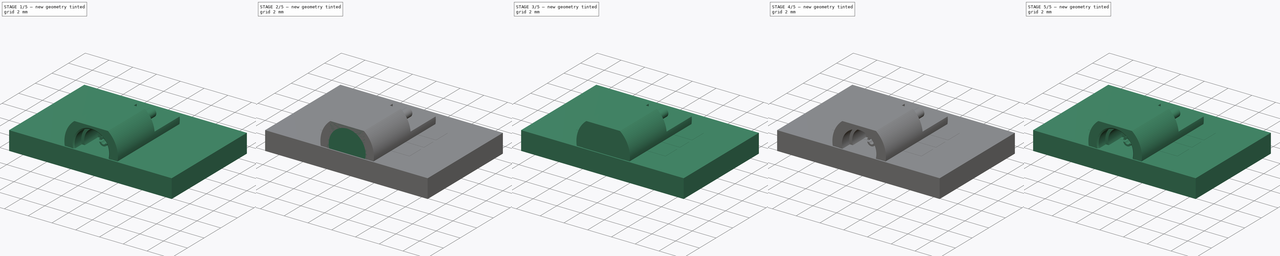
[diagram: build sequence overview — one tinted view per stage of 5, left to right]
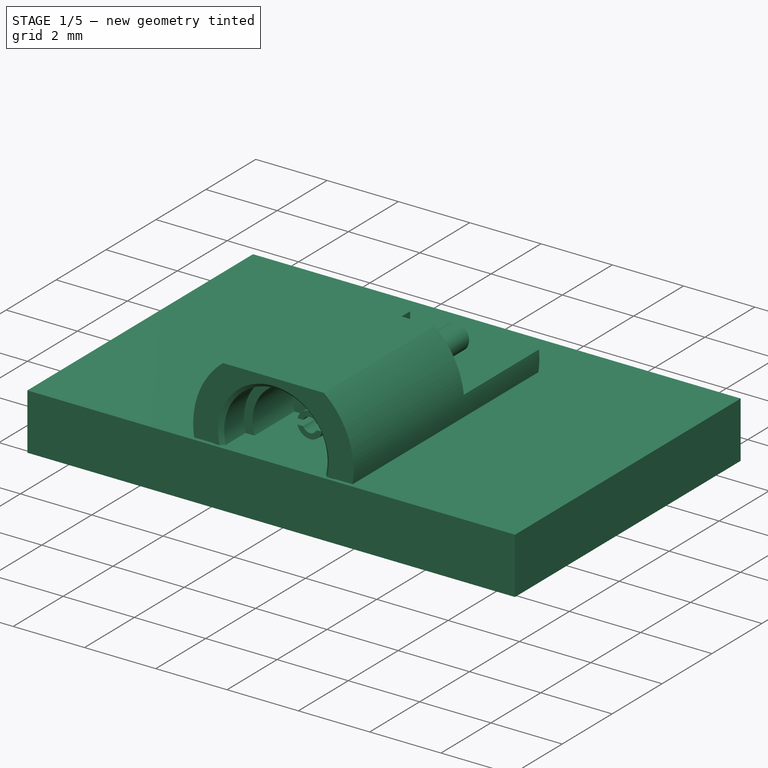
[diagram: stage 1 of 5 — iso view after this stage's code; geometry added in this stage tinted green]
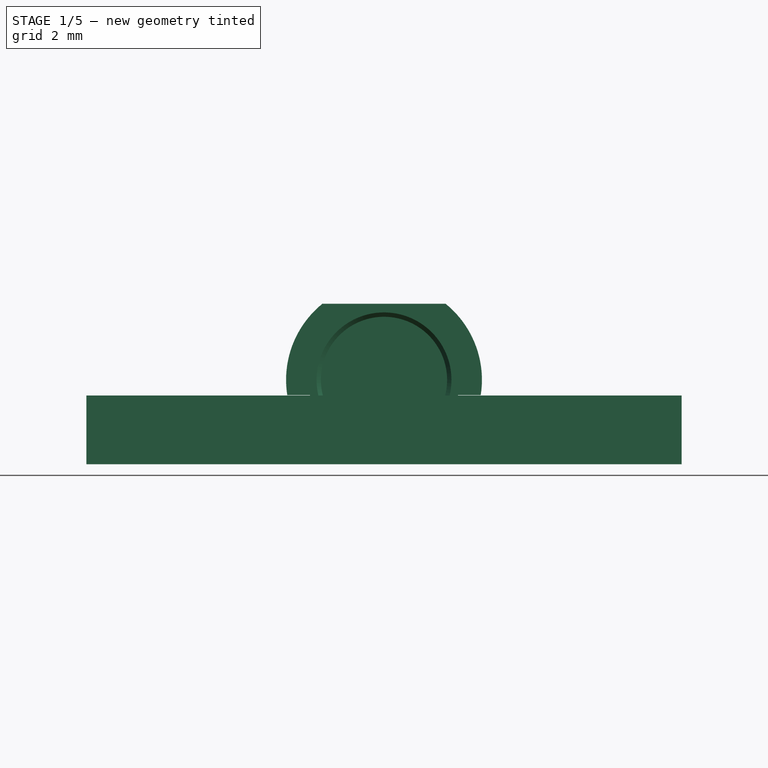
[diagram: stage 1 of 5 — front view after this stage's code; geometry added in this stage tinted green]
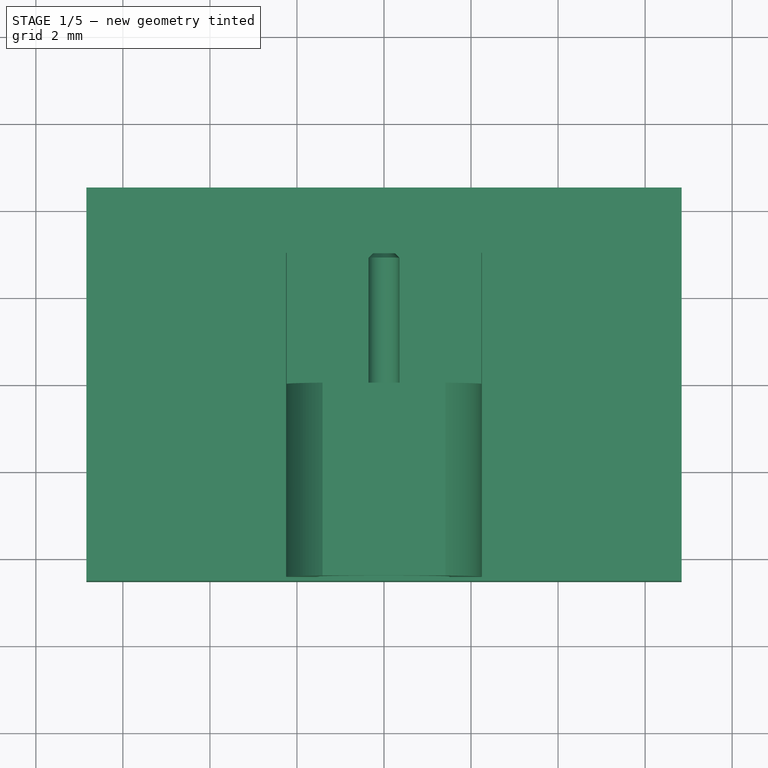
[diagram: stage 1 of 5 — top view after this stage's code; geometry added in this stage tinted green]
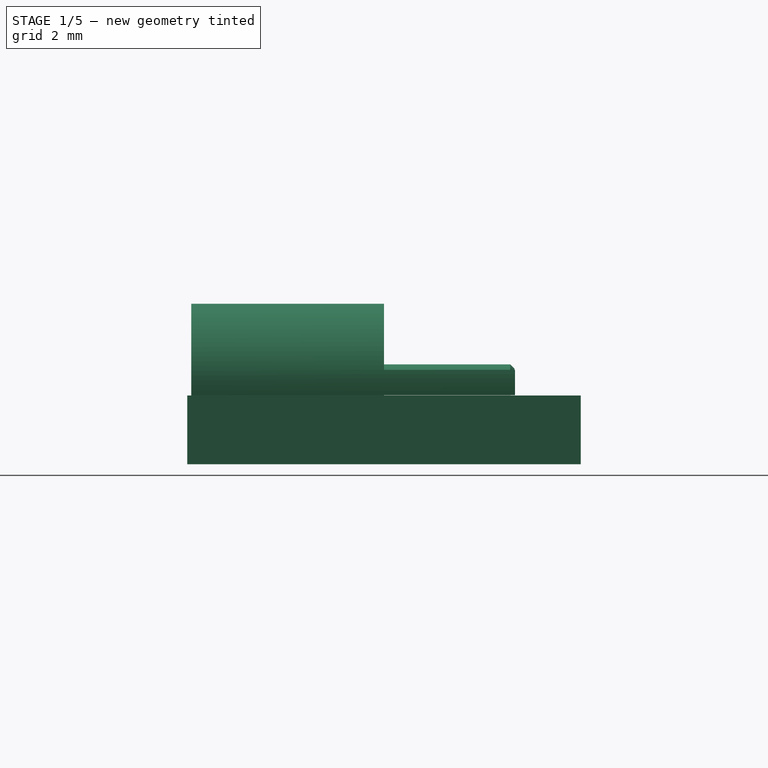
[diagram: stage 1 of 5 — right view after this stage's code; geometry added in this stage tinted green]
FCSTD DOCUMENT  (FreeCAD 0.17R13528 (Git))
Label: MMCX_Molex_73415-0961_Horizontal
License: All rights reserved
LicenseURL: http://en.wikipedia.org/wiki/All_rights_reserved
objects: Sketcher::SketchObject×10, PartDesign::Pad×6, Part::FeaturePython×6, PartDesign::Pocket×4, Part::Feature×4, PartDesign::Body×3, PartDesign::Chamfer×2, PartDesign::ShapeBinder×2, PartDesign::Mirrored×1, App::Part×1, App::DocumentObjectGroup×1, Part::Compound×1, Part::MultiFuse×1
note: 50 computed .brp shape members not serialized (recipe doc carries the construction recipe); baked Part::Feature solids carry a one-line shape summary decoded from their .brp

FEATURE [Part::FeaturePython] newPCB  label="Pcb"  # a2plus imported part (geometry in sourceFile) (typed FeaturePython)
  fixedPosition = true
FEATURE [App::DocumentObjectGroup] MMCX_Molex_73415_0961_Horizontal_0_8mm_PCB_fp
  Group = -> [FCrtYd_lines,FFab_lines,Filk_lines,EdgeCuts_lines,TopPads,newPCB]
FEATURE [Part::Feature] Pad004_cp
  Placement = pos=(0,0,0) rot=(1,0,0;1.5708rad)
  shape: bbox 2.4 x 0.2 x 2.4 mm, 3 faces (baked)
FEATURE [Part::Feature] Pad005_cp
  Placement = pos=(0,0,0) rot=(1,0,0;1.5708rad)
  shape: bbox 1.66 x 0.2 x 1.66 mm, 3 faces (baked)
FEATURE [Part::Feature] Pad003_cp
  Placement = pos=(0,0,0) rot=(1,0,0;1.5708rad)
  shape: bbox 4.5 x 7.44 x 3.5 mm, 44 faces (baked)
FEATURE [Part::Compound] MMCX_Molex_73415_0961_Horizontal_Source_cp
  Links = -> [Pad004_cp,Pad005_cp,Pad003_cp]
FEATURE [Part::MultiFuse] MMCX_Molex_73415_0961_Horizontal_Source_mp_cp  label="MMCX_Molex_73415-0961_Horizontal_Source_fd"
  Shapes = -> [MMCX_Molex_73415_0961_Horizontal_Source_cp]
FEATURE [Part::Feature] Shape001  label="MMCX_Molex_73415-0961_Horizontal"
  shape: bbox 7.44 x 4.5 x 3.5 mm, 43 faces (baked)
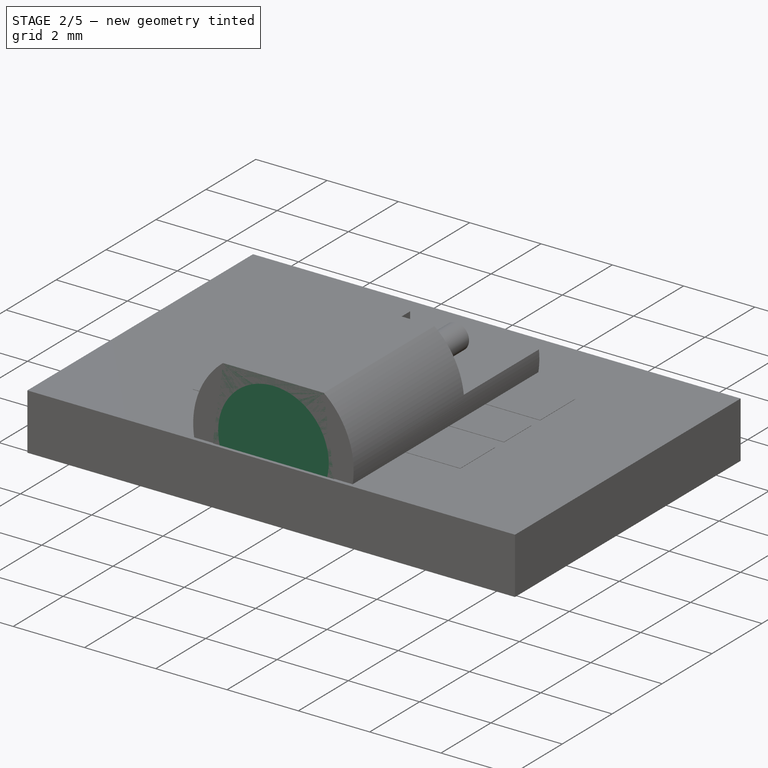
[diagram: stage 2 of 5 — iso view after this stage's code; geometry added in this stage tinted green]
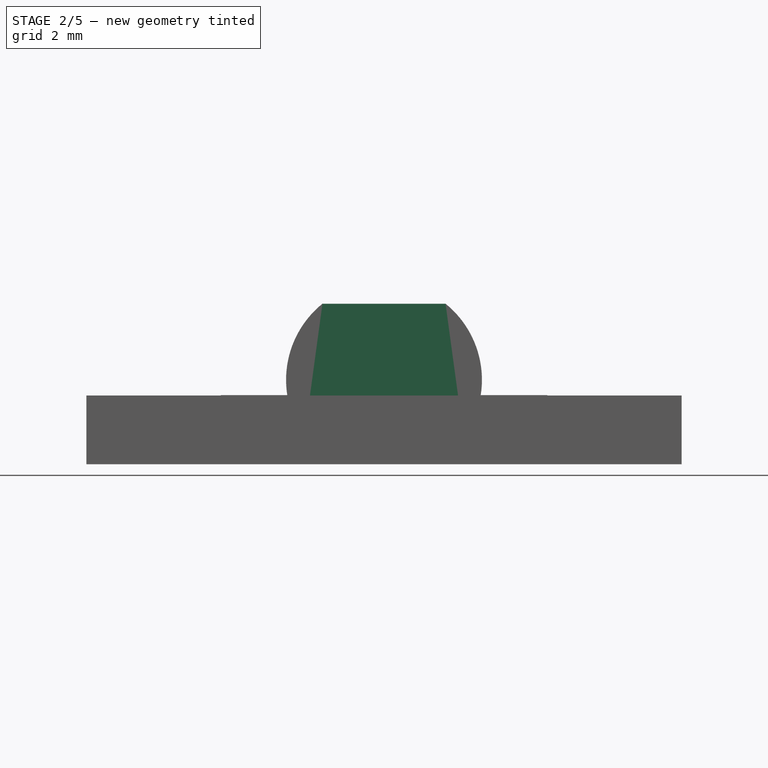
[diagram: stage 2 of 5 — front view after this stage's code; geometry added in this stage tinted green]
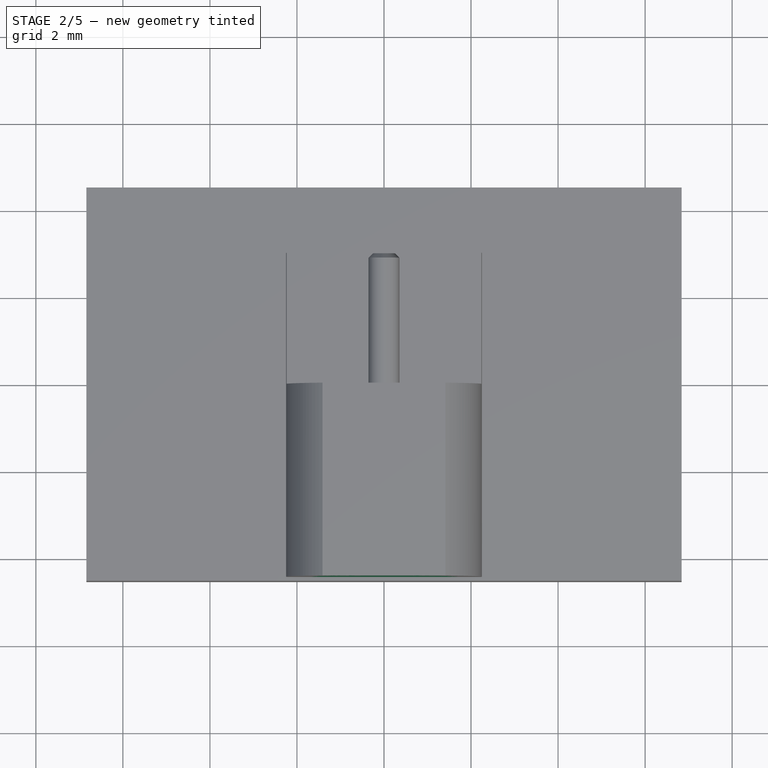
[diagram: stage 2 of 5 — top view after this stage's code; geometry added in this stage tinted green]
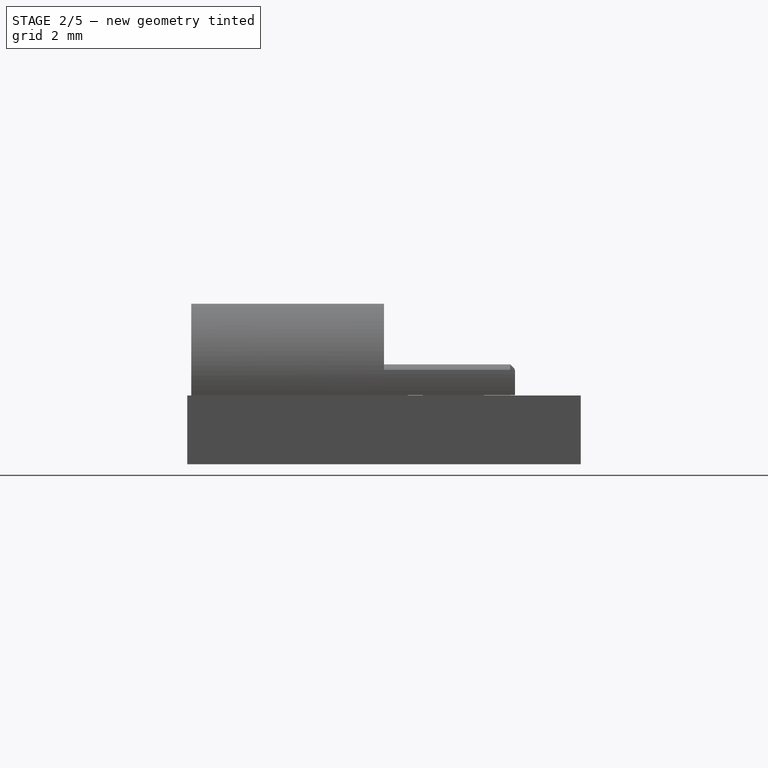
[diagram: stage 2 of 5 — right view after this stage's code; geometry added in this stage tinted green]
FEATURE [Sketcher::SketchObject] Sketch
  MapMode = 5
  Placement = pos=(0,0,0) rot=(1,0,0;1.5708rad)
  Support = -> [XZ_Plane]
  sketch-geometry (13):
    g0: LineSegment StartX=1.7 StartY=0 StartZ=0 EndX=2.22261 EndY=0 EndZ=0
    g1: LineSegment StartX=-2.22261 StartY=0 StartZ=0 EndX=-1.7 EndY=0 EndZ=0
    g2: LineSegment StartX=-1.7 StartY=0 StartZ=0 EndX=-1.7 EndY=-1.075 EndZ=0
    g3: LineSegment StartX=-1.7 StartY=-1.075 StartZ=0 EndX=-1.375 EndY=-1.4 EndZ=0
    g4: LineSegment StartX=1.7 StartY=-1.075 StartZ=0 EndX=1.7 EndY=0 EndZ=0
    g5: ArcOfCircle CenterX=0 CenterY=0.35 CenterZ=0 NormalX=0 NormalY=0 NormalZ=1 AngleXU=0 Radius=2.25 StartAngle=2.25047 EndAngle=3.29778
    g6: ArcOfCircle CenterX=0 CenterY=0.35 CenterZ=0 NormalX=0 NormalY=0 NormalZ=1 AngleXU=0 Radius=2.25 StartAngle=6.127 EndAngle=7.17431
    g7: LineSegment StartX=-1.375 StartY=-1.4 StartZ=0 EndX=1.375 EndY=-1.4 EndZ=0
    g8: LineSegment StartX=1.375 StartY=-1.4 StartZ=0 EndX=1.7 EndY=-1.075 EndZ=0
    g9: LineSegment [constr] StartX=-1.375 StartY=-1.4 StartZ=0 EndX=-1.7 EndY=-1.4 EndZ=0
    g10: LineSegment [constr] StartX=-1.7 StartY=-1.4 StartZ=0 EndX=-1.7 EndY=-1.075 EndZ=0
    g11: LineSegment StartX=-1.41421 StartY=2.1 StartZ=0 EndX=1.41421 EndY=2.1 EndZ=0
    g12: LineSegment [constr] StartX=0 StartY=0 StartZ=0 EndX=0 EndY=0.35 EndZ=0
  constraints (35):
    c: PointOnObject(g0,g-1)
    c: Horizontal(g0)
    c: PointOnObject(g1,g-1)
    c: Vertical(g2)
    c: Coincident(g3,g2)
    c: Coincident(g5,g1)
    c: Coincident(g6,g0)
    c: Vertical(g4)
    c: Coincident(g0,g4)
    c: Equal(g2,g4)
    c: Equal(g5,g6)
    c: Radius(g5) = 2.25
    c: DistanceY(g3,g5) = 3.5
    c: DistanceX(g1,g0) = 3.4
    c: Symmetric(g0,g1,g-2)
    c: Coincident(g3,g7)
    c: Coincident(g7,g8)
    c: Coincident(g8,g4)
    c: Symmetric(g7,g3,g-2)
    c: DistanceX(g7,g7) = 2.75
    c: Coincident(g3,g9)
    c: Horizontal(g9)
    c: Coincident(g9,g10)
    c: Coincident(g10,g2)
    c: Vertical(g10)
    c: Equal(g9,g10)
    c: DistanceY(g3,g1) = 1.4
    c: Coincident(g11,g5)
    c: Coincident(g11,g6)
    c: Coincident(g2,g1)
    c: DistanceY(g12,g12) = 0.35
    c: Symmetric(g6,g5,g-2)
    c: Coincident(g12,g-1)
    c: Coincident(g5,g6)
    c: Coincident(g5,g12)
FEATURE [PartDesign::Pad] Pad
  Length = 4.43
  Length2 = 100
  Placement = pos=(0,0,0) rot=(1,0,0;1.5708rad)
  Profile = -> Sketch
  Type = 0
FEATURE [PartDesign::Body] Body  label="Shell"
  Group = -> [Sketch,Pad,Sketch001,Pad001,Mirrored,Sketch004,Pocket,Sketch005,Pad002,Chamfer,Sketch006,Pocket001,Sketch007,Pocket002,Sketch008,Pocket003,Chamfer001,Sketch009,Pad003]
  Origin = -> Origin
  Tip = -> Pad003
FEATURE [PartDesign::ShapeBinder] CopyPad003
  Placement = pos=(0,0,0) rot=(1,0,0;1.5708rad)
FEATURE [Sketcher::SketchObject] Sketch010
  MapMode = 5
  Placement = pos=(0,-0.2,0) rot=(-1,0,0;1.5708rad)
  Support = -> [CopyPad003]
  sketch-geometry (1):
    g0: Circle CenterX=0 CenterY=-0.35 CenterZ=0 NormalX=0 NormalY=0 NormalZ=1 AngleXU=0 Radius=1.2
  constraints (3):
    c: PointOnObject(g0,g-2)
    c: DistanceY(g0,g-1) = 0.35
    c: Radius(g0) = 1.2
FEATURE [PartDesign::Pad] Pad004
  Length = 0.2
  Length2 = 100
  Placement = pos=(0,0,0) rot=(1,0,0;1.5708rad)
  Profile = -> Sketch010
  Type = 0
FEATURE [PartDesign::Body] Body001  label="Plastic_Bottom"
  Group = -> [CopyPad003,Sketch010,Pad004]
  Origin = -> Origin001
  Tip = -> Pad004
FEATURE [PartDesign::ShapeBinder] CopyPad003001
  Placement = pos=(0,0,0) rot=(1,0,0;1.5708rad)
FEATURE [Sketcher::SketchObject] Sketch011
  MapMode = 5
  Placement = pos=(0,-1.31,0) rot=(1,0,0;1.5708rad)
  Support = -> [CopyPad003001]
  sketch-geometry (1):
    g0: Circle CenterX=0 CenterY=0.35 CenterZ=0 NormalX=0 NormalY=0 NormalZ=1 AngleXU=0 Radius=0.83
  constraints (3):
    c: PointOnObject(g0,g-2)
    c: DistanceY(g-1,g0) = 0.35
    c: Radius(g0) = 0.83
FEATURE [PartDesign::Pad] Pad005
  Length = 0.2
  Length2 = 100
  Placement = pos=(0,0,0) rot=(1,0,0;1.5708rad)
  Profile = -> Sketch011
  Type = 0
FEATURE [PartDesign::Body] Body002  label="Plastic_Top"
  Group = -> [CopyPad003001,Sketch011,Pad005]
  Origin = -> Origin002
  Tip = -> Pad005
FEATURE [App::Part] Part  label="MMCX_Molex_73415-0961_Horizontal_Source"
  Group = -> [Body001,Body002,Body]
  License = CC BY 3.0
  LicenseURL = http://creativecommons.org/licenses/by/3.0/
  Origin = -> Origin003
FEATURE [Part::FeaturePython] FCrtYd_lines  label="FCrtYd"  # a2plus imported part (geometry in sourceFile) (typed FeaturePython)
  fixedPosition = true
FEATURE [Part::FeaturePython] FFab_lines  label="FFab"  # a2plus imported part (geometry in sourceFile) (typed FeaturePython)
  fixedPosition = true
FEATURE [Part::FeaturePython] Filk_lines  label="FrontSilk"  # a2plus imported part (geometry in sourceFile) (typed FeaturePython)
  fixedPosition = true
FEATURE [Part::FeaturePython] EdgeCuts_lines  label="EdgeCuts"  # a2plus imported part (geometry in sourceFile) (typed FeaturePython)
  fixedPosition = true
FEATURE [Part::FeaturePython] TopPads  # a2plus imported part (geometry in sourceFile) (typed FeaturePython)
  fixedPosition = true
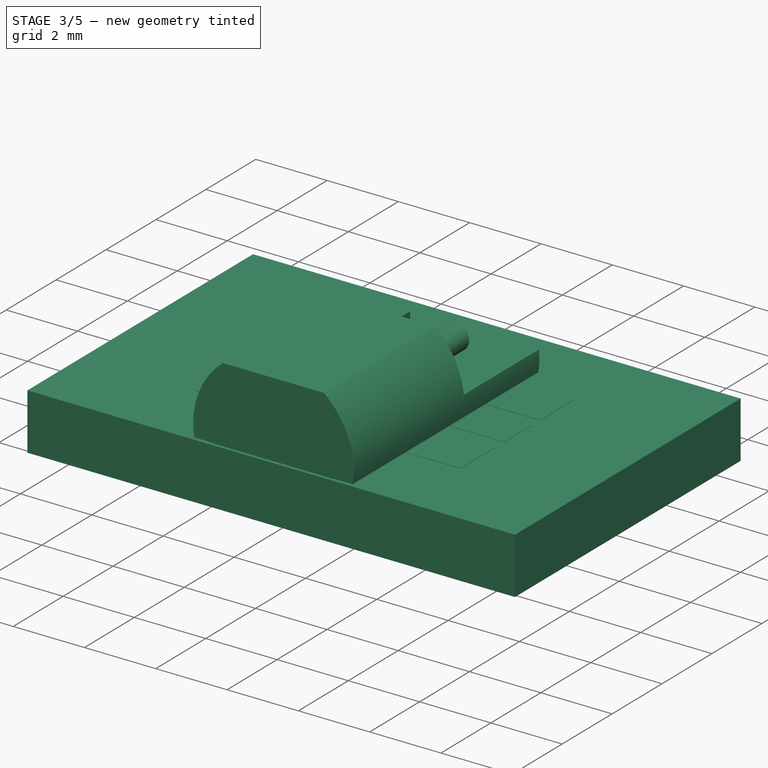
[diagram: stage 3 of 5 — iso view after this stage's code; geometry added in this stage tinted green]
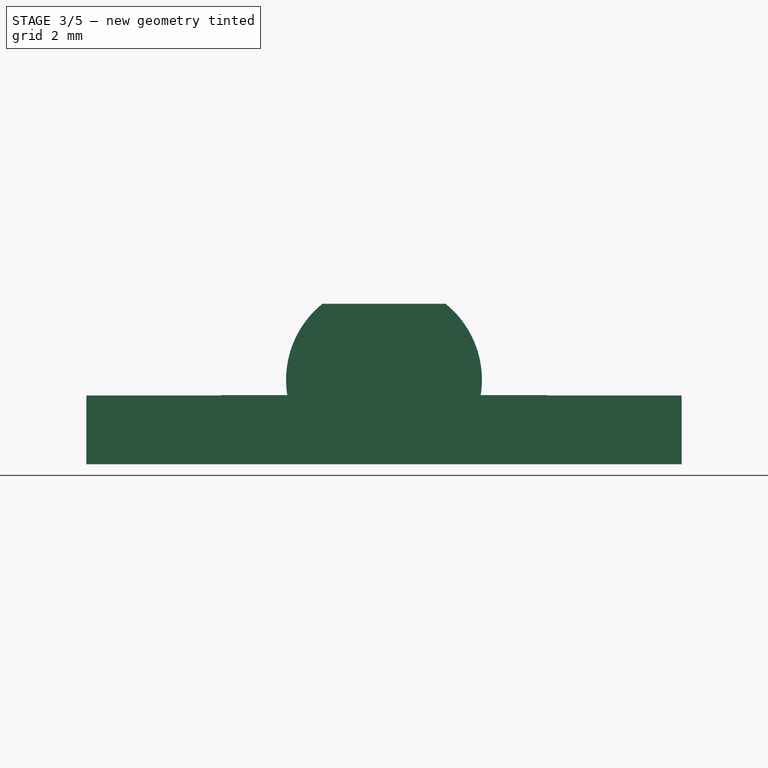
[diagram: stage 3 of 5 — front view after this stage's code; geometry added in this stage tinted green]
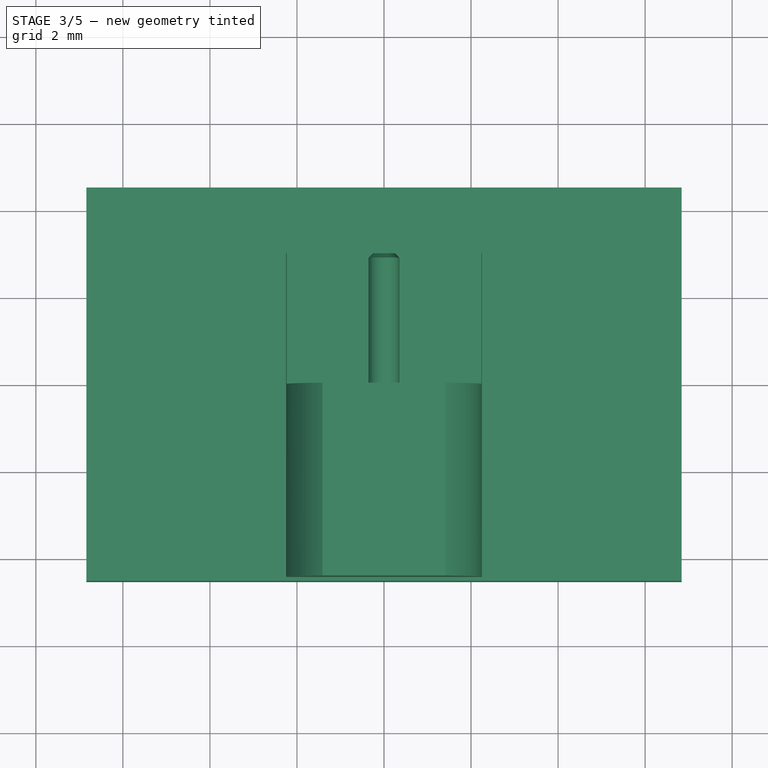
[diagram: stage 3 of 5 — top view after this stage's code; geometry added in this stage tinted green]
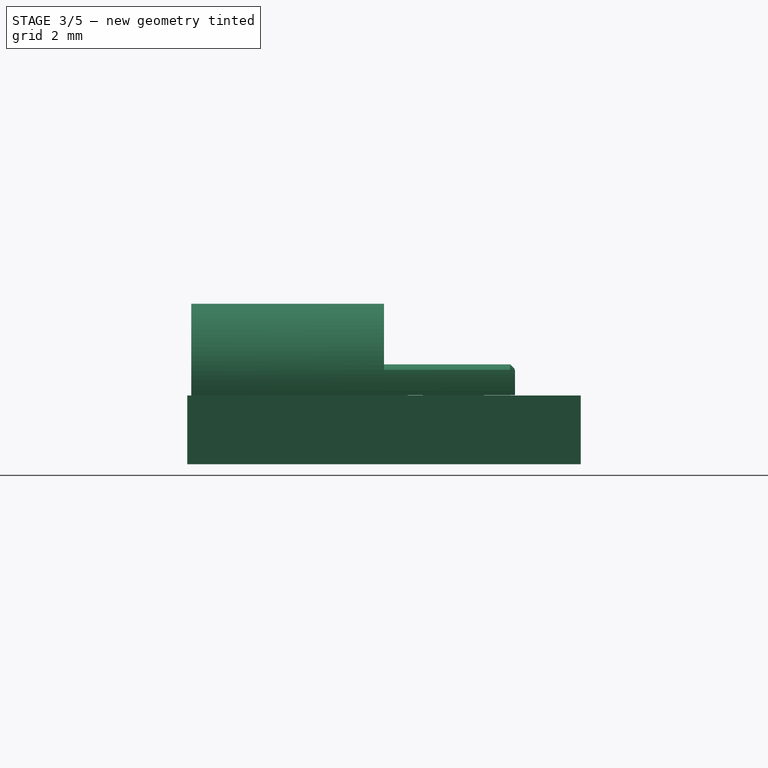
[diagram: stage 3 of 5 — right view after this stage's code; geometry added in this stage tinted green]
FEATURE [Sketcher::SketchObject] Sketch001
  MapMode = 5
  Placement = pos=(0,0,0) rot=(-1,0,0;1.5708rad)
  Support = -> [Pad]
  sketch-geometry (5):
    g0: LineSegment StartX=2.23821 StartY=-0.58 StartZ=0 EndX=1.375 EndY=-0.58 EndZ=0
    g1: LineSegment StartX=1.375 StartY=-0.58 StartZ=0 EndX=1.375 EndY=0 EndZ=0
    g2: LineSegment StartX=2.22261 StartY=0 StartZ=0 EndX=1.375 EndY=0 EndZ=0
    g3: LineSegment [constr] StartX=0 StartY=0 StartZ=0 EndX=0 EndY=-0.35 EndZ=0
    g4: ArcOfCircle CenterX=0 CenterY=-0.35 CenterZ=0 NormalX=0 NormalY=0 NormalZ=1 AngleXU=0 Radius=2.25 StartAngle=6.18078 EndAngle=6.43938
  constraints (15):
    c: Horizontal(g0)
    c: Coincident(g1,g0)
    c: PointOnObject(g1,g-1)
    c: Coincident(g2,g1)
    c: Horizontal(g2)
    c: Vertical(g1)
    c: Coincident(g3,g-1)
    c: PointOnObject(g3,g-2)
    c: DistanceY(g3,g3) = 0.35
    c: Coincident(g4,g3)
    c: Coincident(g4,g2)
    c: Coincident(g4,g0)
    c: Radius(g4) = 2.25
    c: DistanceX(g-1,g1) = 1.375
    c: DistanceY(g1,g1) = 0.58
FEATURE [PartDesign::Pad] Pad001
  BaseFeature = -> Pad
  Length = 3.01
  Length2 = 100
  Placement = pos=(0,0,0) rot=(1,0,0;1.5708rad)
  Profile = -> Sketch001
  Type = 0
FEATURE [PartDesign::Mirrored] Mirrored
  BaseFeature = -> Pad001
  MirrorPlane = -> Sketch001 [V_Axis]
  Originals = -> [Pad001]
  Placement = pos=(0,0,0) rot=(1,0,0;1.5708rad)
FEATURE [Sketcher::SketchObject] Sketch004
  MapMode = 5
  Placement = pos=(0,0,0) rot=(-1,0,0;1.5708rad)
  sketch-geometry (2):
    g0: LineSegment [constr] StartX=0 StartY=0 StartZ=0 EndX=0 EndY=-0.35 EndZ=0
    g1: Circle CenterX=0 CenterY=-0.35 CenterZ=0 NormalX=0 NormalY=0 NormalZ=1 AngleXU=0 Radius=1.2
  constraints (5):
    c: Coincident(g0,g-1)
    c: PointOnObject(g0,g-2)
    c: DistanceY(g0,g0) = 0.35
    c: Coincident(g1,g0)
    c: Radius(g1) = 1.2
FEATURE [PartDesign::Pocket] Pocket
  BaseFeature = -> Mirrored
  Length = 0.2
  Length2 = 100
  Placement = pos=(0,0,0) rot=(1,0,0;1.5708rad)
  Profile = -> Sketch004
  Type = 0
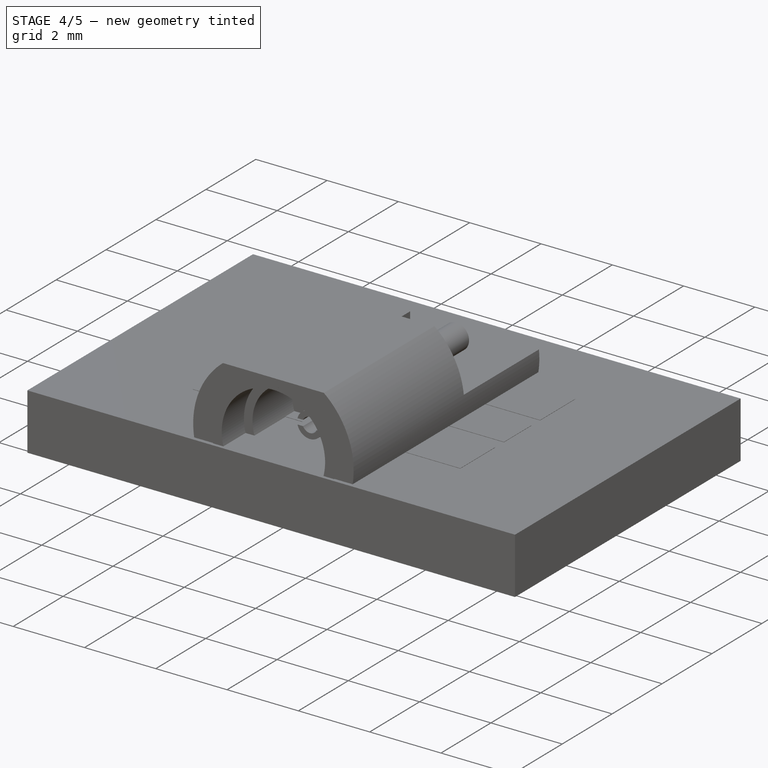
[diagram: stage 4 of 5 — iso view after this stage's code; geometry added in this stage tinted green]
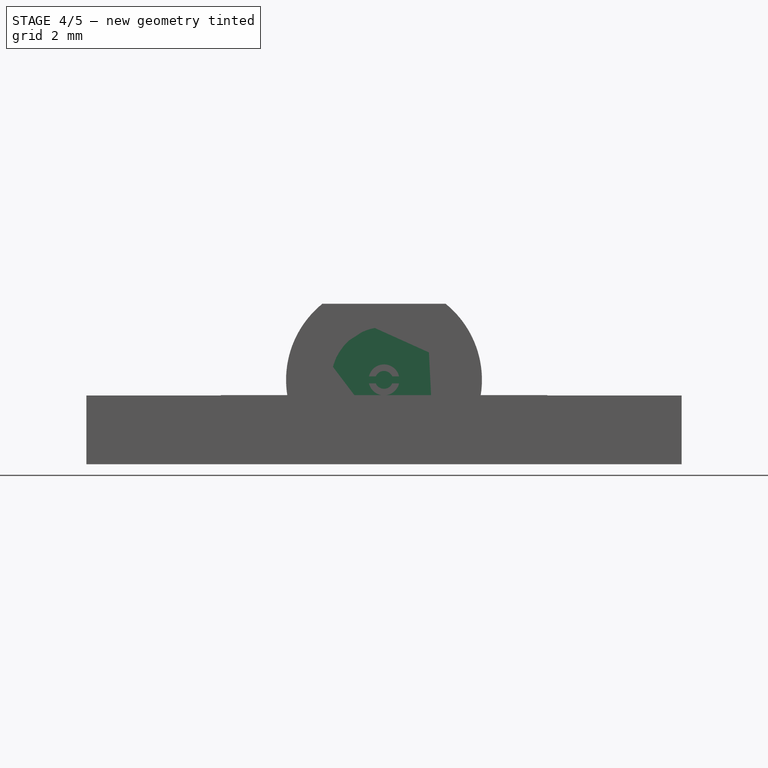
[diagram: stage 4 of 5 — front view after this stage's code; geometry added in this stage tinted green]
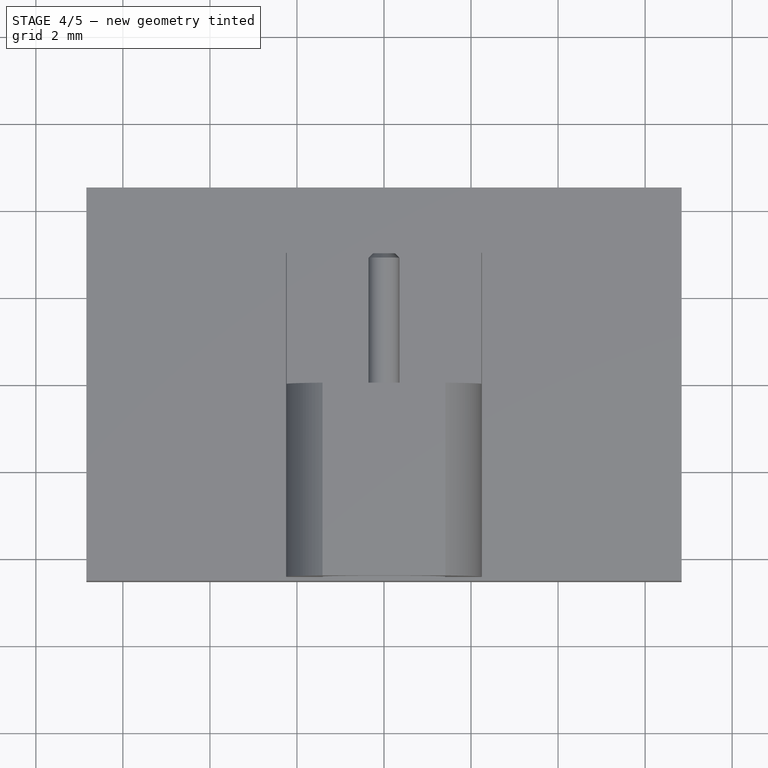
[diagram: stage 4 of 5 — top view after this stage's code; geometry added in this stage tinted green]
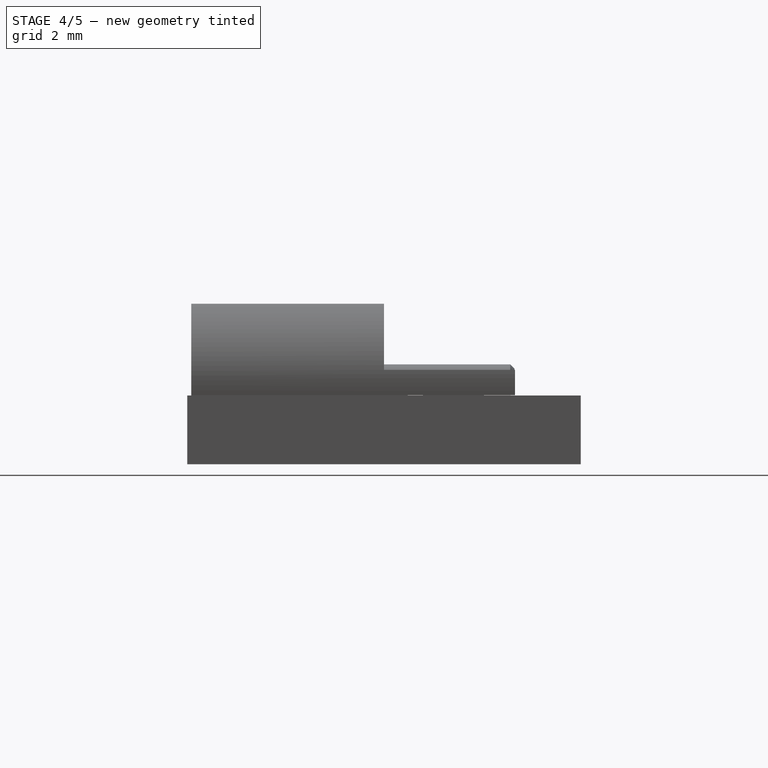
[diagram: stage 4 of 5 — right view after this stage's code; geometry added in this stage tinted green]
FEATURE [Sketcher::SketchObject] Sketch005
  MapMode = 5
  Placement = pos=(0,-0.2,0) rot=(-1,0,0;1.5708rad)
  Support = -> [Pocket]
  sketch-geometry (1):
    g0: Circle CenterX=0 CenterY=-0.35 CenterZ=0 NormalX=0 NormalY=0 NormalZ=1 AngleXU=0 Radius=0.355
  constraints (3):
    c: PointOnObject(g0,g-2)
    c: DistanceY(g0,g-1) = 0.35
    c: Radius(g0) = 0.355
FEATURE [PartDesign::Pad] Pad002
  BaseFeature = -> Pocket
  Length = 3.2
  Length2 = 100
  Placement = pos=(0,0,0) rot=(1,0,0;1.5708rad)
  Profile = -> Sketch005
  Type = 0
FEATURE [PartDesign::Chamfer] Chamfer
  Base = -> Pad002 [Edge60]
  BaseFeature = -> Pad002
  Placement = pos=(0,0,0) rot=(1,0,0;1.5708rad)
  Size = 0.1
FEATURE [Sketcher::SketchObject] Sketch006
  MapMode = 5
  Placement = pos=(0,-4.43,0) rot=(1,0,0;1.5708rad)
  Support = -> [Chamfer]
  sketch-geometry (1):
    g0: Circle CenterX=0 CenterY=0.35 CenterZ=0 NormalX=0 NormalY=0 NormalZ=1 AngleXU=0 Radius=1.45
  constraints (3):
    c: PointOnObject(g0,g-2)
    c: DistanceY(g-1,g0) = 0.35
    c: Radius(g0) = 1.45
FEATURE [PartDesign::Pocket] Pocket001
  BaseFeature = -> Chamfer
  Length = 0.89
  Length2 = 100
  Placement = pos=(0,0,0) rot=(1,0,0;1.5708rad)
  Profile = -> Sketch006
  Type = 0
FEATURE [Sketcher::SketchObject] Sketch007
  MapMode = 5
  Placement = pos=(0,-3.54,0) rot=(1,0,0;1.5708rad)
  Support = -> [Pocket001]
  sketch-geometry (1):
    g0: Circle CenterX=0 CenterY=0.35 CenterZ=0 NormalX=0 NormalY=0 NormalZ=1 AngleXU=0 Radius=1.21
  constraints (3):
    c: PointOnObject(g0,g-2)
    c: DistanceY(g-1,g0) = 0.35
    c: Radius(g0) = 1.21
FEATURE [PartDesign::Pocket] Pocket002
  BaseFeature = -> Pocket001
  Length = 1.6
  Length2 = 100
  Placement = pos=(0,0,0) rot=(1,0,0;1.5708rad)
  Profile = -> Sketch007
  Type = 0
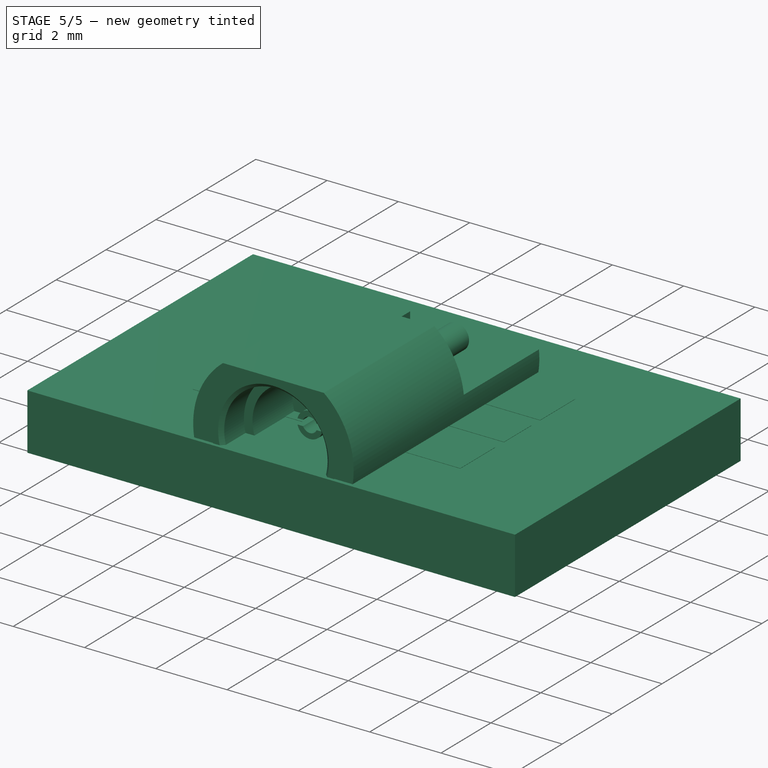
[diagram: stage 5 of 5 — iso view after this stage's code; geometry added in this stage tinted green]
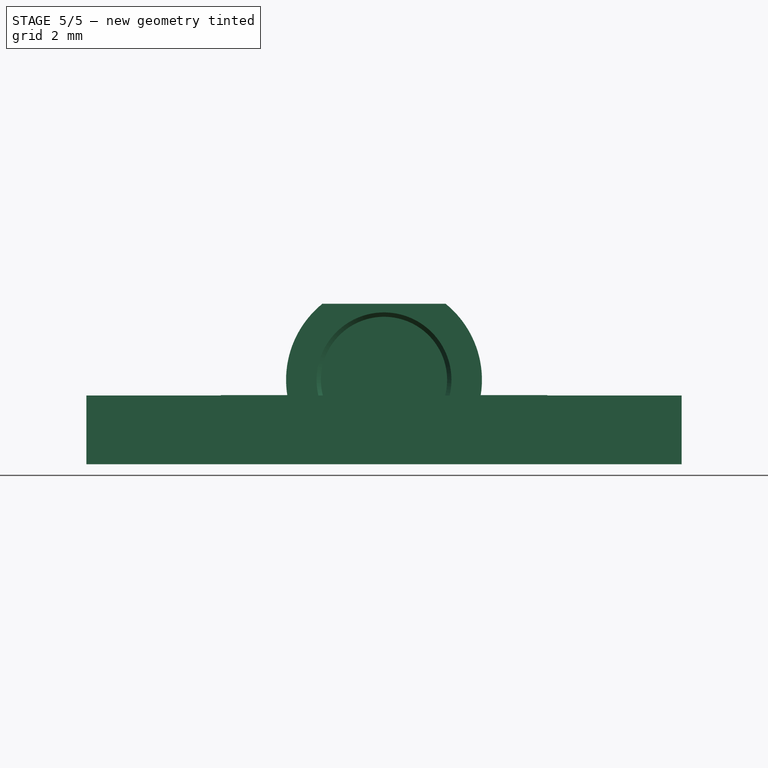
[diagram: stage 5 of 5 — front view after this stage's code; geometry added in this stage tinted green]
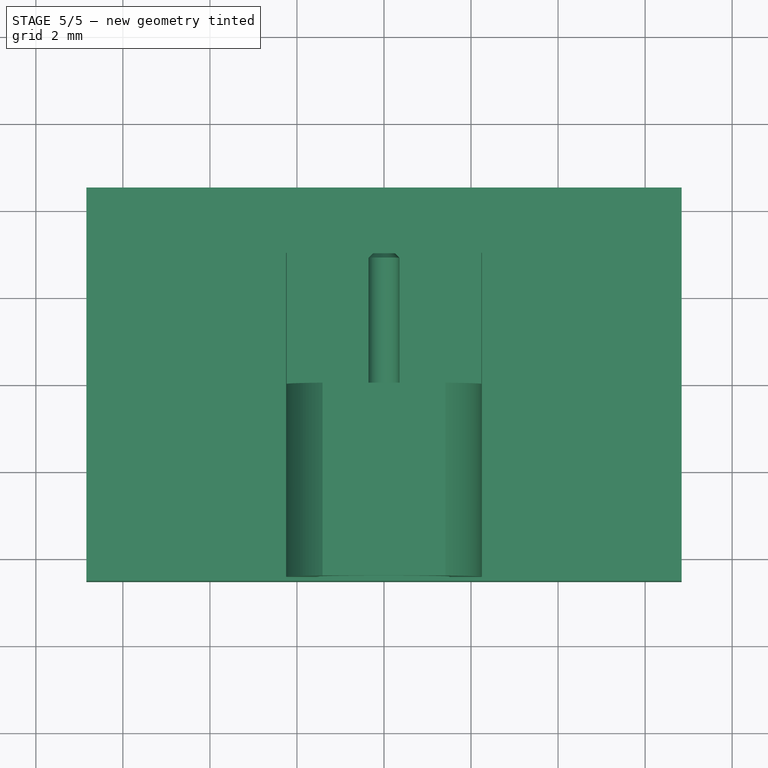
[diagram: stage 5 of 5 — top view after this stage's code; geometry added in this stage tinted green]
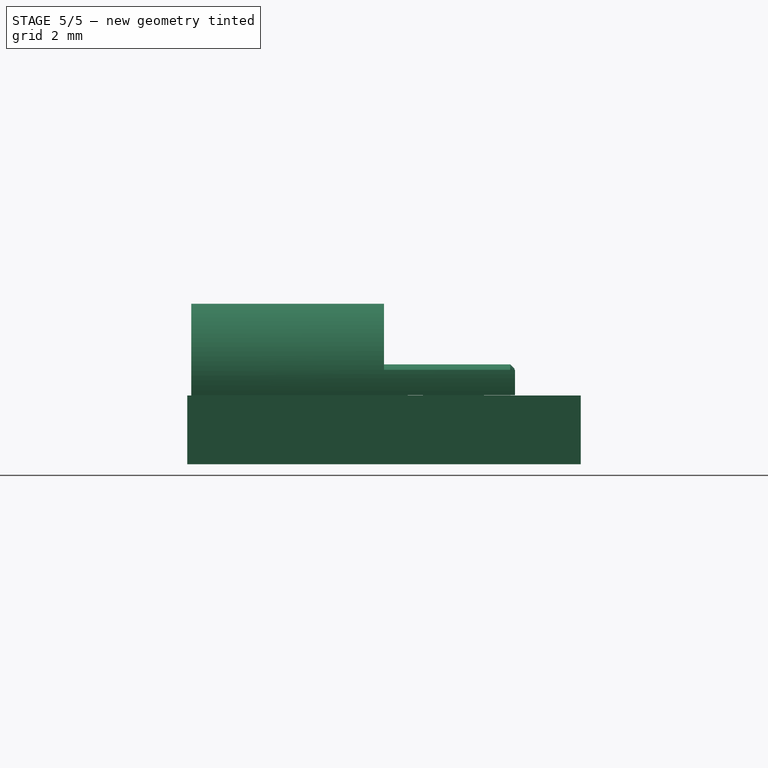
[diagram: stage 5 of 5 — right view after this stage's code; geometry added in this stage tinted green]
FEATURE [Sketcher::SketchObject] Sketch008
  MapMode = 5
  Placement = pos=(0,-1.94,0) rot=(1,0,0;1.5708rad)
  Support = -> [Pocket002]
  sketch-geometry (1):
    g0: Circle CenterX=0 CenterY=0.35 CenterZ=0 NormalX=0 NormalY=0 NormalZ=1 AngleXU=0 Radius=0.83
  constraints (3):
    c: PointOnObject(g0,g-2)
    c: DistanceY(g-1,g0) = 0.35
    c: Radius(g0) = 0.83
FEATURE [PartDesign::Pocket] Pocket003
  BaseFeature = -> Pocket002
  Length = 0.63
  Length2 = 100
  Placement = pos=(0,0,0) rot=(1,0,0;1.5708rad)
  Profile = -> Sketch008
  Type = 0
FEATURE [PartDesign::Chamfer] Chamfer001
  Base = -> Pocket003 [Edge61]
  BaseFeature = -> Pocket003
  Placement = pos=(0,0,0) rot=(1,0,0;1.5708rad)
  Size = 0.1
FEATURE [Sketcher::SketchObject] Sketch009
  MapMode = 5
  Placement = pos=(0,-1.31,0) rot=(1,0,0;1.5708rad)
  Support = -> [Chamfer001]
  sketch-geometry (8):
    g0: ArcOfCircle CenterX=0 CenterY=0.35 CenterZ=0 NormalX=0 NormalY=0 NormalZ=1 AngleXU=0 Radius=0.205 StartAngle=0.400896 EndAngle=2.7407
    g1: LineSegment StartX=-0.188746 StartY=0.43 StartZ=0 EndX=-0.345868 EndY=0.43 EndZ=0
    g2: LineSegment StartX=0.188746 StartY=0.43 StartZ=0 EndX=0.345868 EndY=0.43 EndZ=0
    g3: ArcOfCircle CenterX=0 CenterY=0.35 CenterZ=0 NormalX=0 NormalY=0 NormalZ=1 AngleXU=0 Radius=0.355 StartAngle=0.227304 EndAngle=2.91429
    g4: ArcOfCircle CenterX=0 CenterY=0.35 CenterZ=0 NormalX=0 NormalY=0 NormalZ=1 AngleXU=0 Radius=0.205 StartAngle=3.54249 EndAngle=5.88229
    g5: LineSegment StartX=-0.188746 StartY=0.27 StartZ=0 EndX=-0.345868 EndY=0.27 EndZ=0
    g6: LineSegment StartX=0.188746 StartY=0.27 StartZ=0 EndX=0.345868 EndY=0.27 EndZ=0
    g7: ArcOfCircle CenterX=0 CenterY=0.35 CenterZ=0 NormalX=0 NormalY=0 NormalZ=1 AngleXU=0 Radius=0.355 StartAngle=3.3689 EndAngle=6.05588
  constraints (25):
    c: PointOnObject(g0,g-2)
    c: DistanceY(g-1,g0) = 0.35
    c: DistanceY(g0,g0) = 0.08
    c: Radius(g0) = 0.205
    c: Horizontal(g0,g0)
    c: Coincident(g1,g0)
    c: Horizontal(g1)
    c: Coincident(g2,g0)
    c: Horizontal(g2)
    c: Coincident(g3,g0)
    c: Coincident(g3,g1)
    c: Coincident(g3,g2)
    c: Radius(g3) = 0.355
    c: Coincident(g4,g0)
    c: DistanceY(g4,g0) = 0.08
    c: Horizontal(g4,g4)
    c: Equal(g0,g4)
    c: Coincident(g5,g4)
    c: Horizontal(g5)
    c: Coincident(g6,g4)
    c: Horizontal(g6)
    c: Coincident(g7,g0)
    c: Coincident(g7,g5)
    c: Coincident(g7,g6)
    c: Equal(g7,g3)
FEATURE [PartDesign::Pad] Pad003
  BaseFeature = -> Chamfer001
  Length = 1.66
  Length2 = 100
  Placement = pos=(0,0,0) rot=(1,0,0;1.5708rad)
  Profile = -> Sketch009
  Type = 0
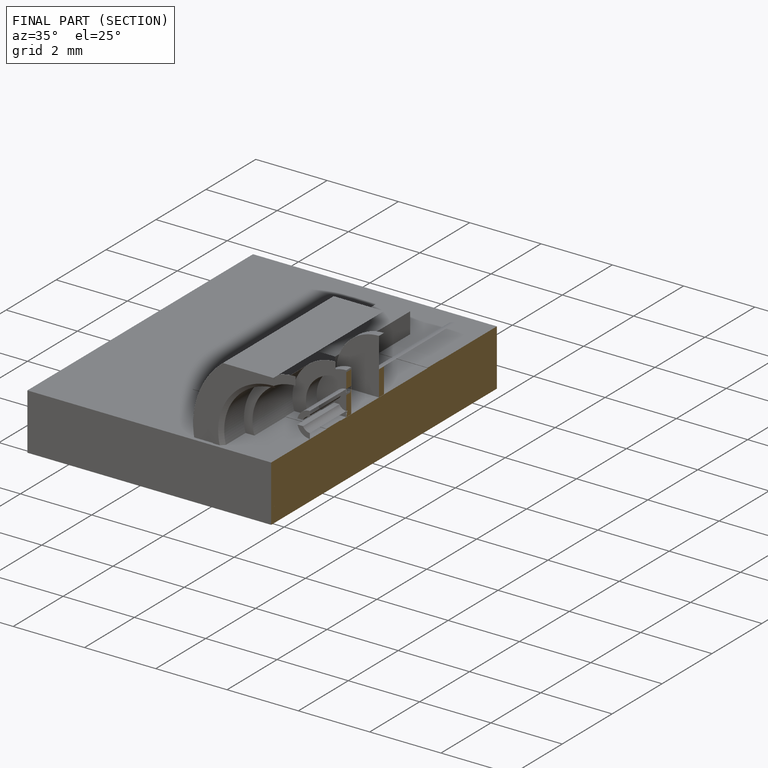
[diagram: finished part — half-section view (interior)]
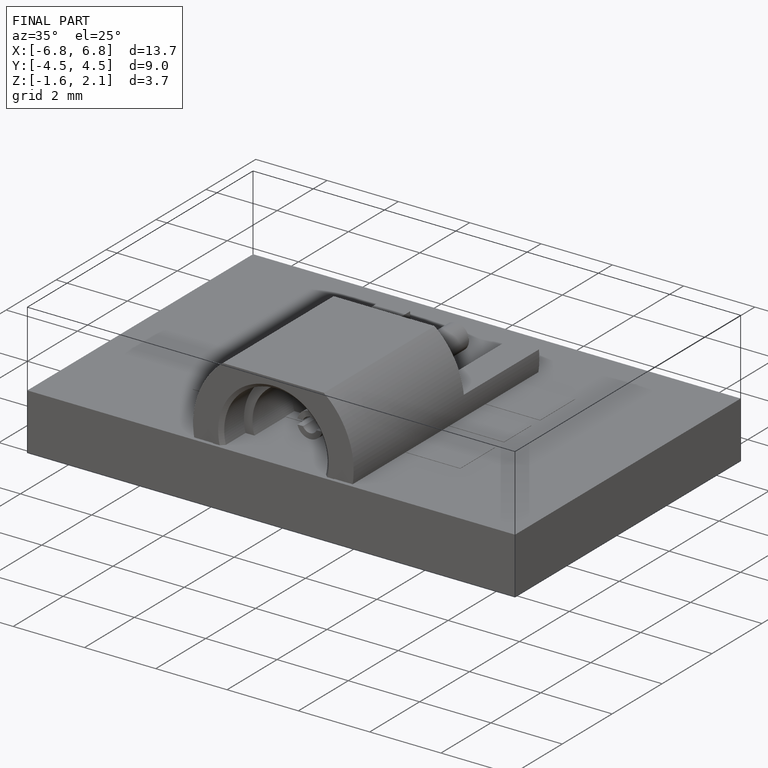
[diagram: finished part — iso view with bounding-box wireframe]
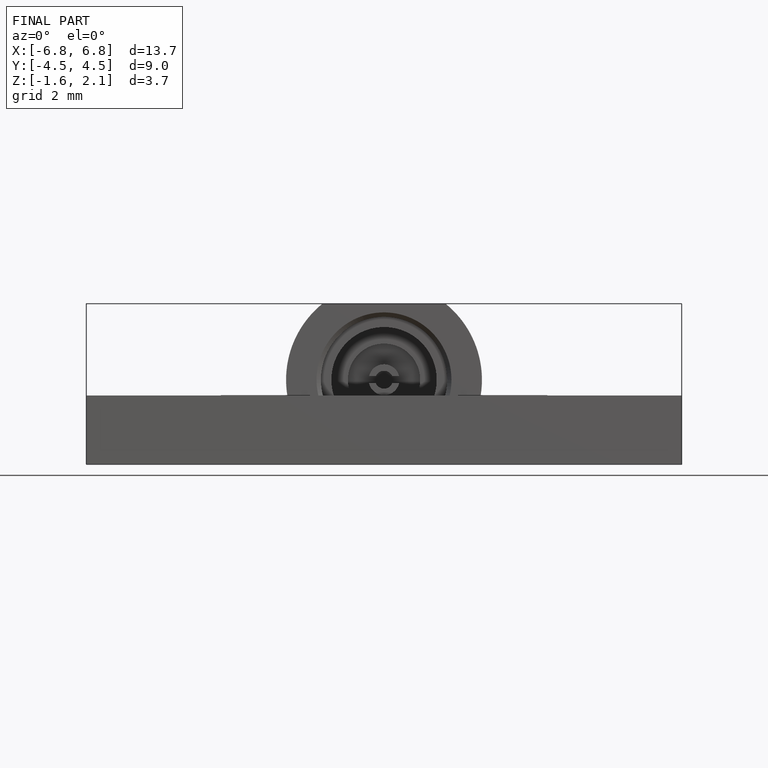
[diagram: finished part — front view with bounding-box wireframe]
